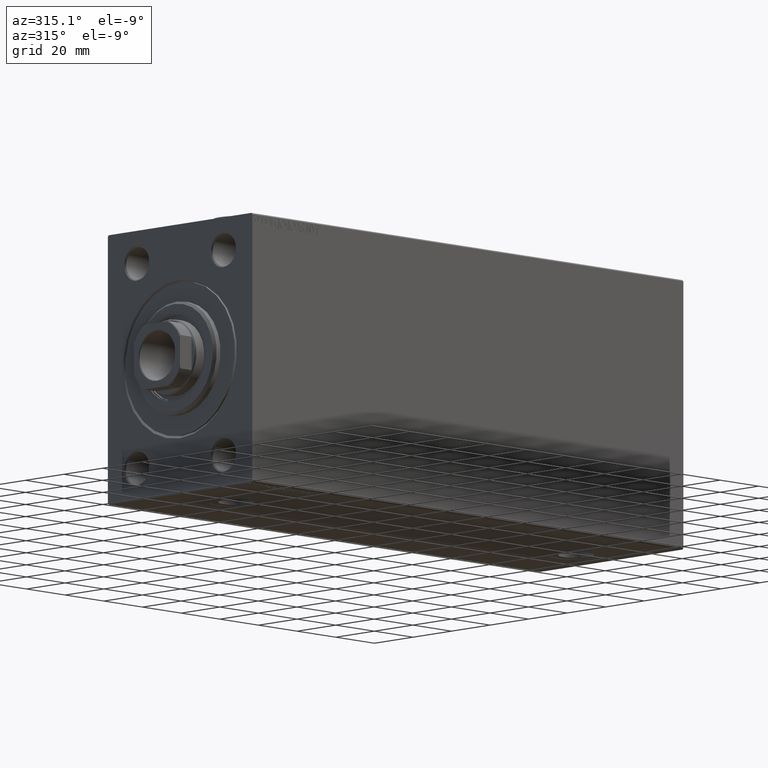
[diagram: clean part render]
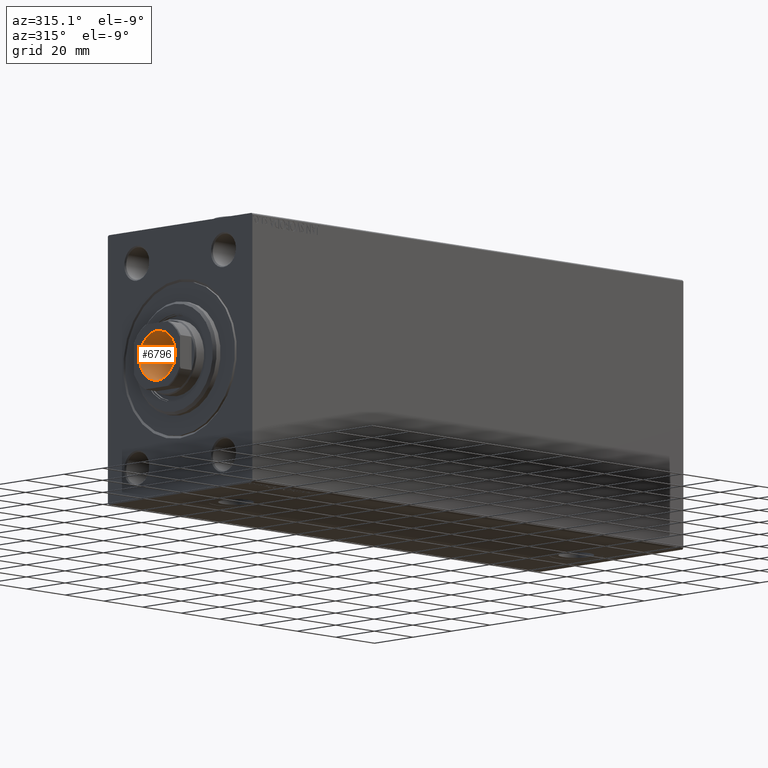
[diagram: same view with one face highlighted and labeled with its STEP entity id]
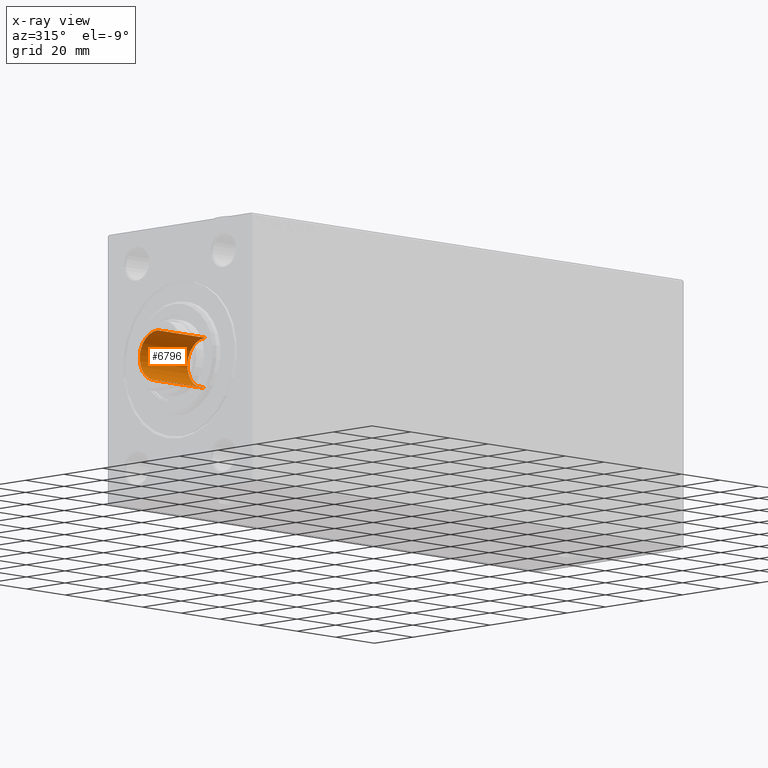
[diagram: x-ray of the same camera — body ghosted, the highlighted face saturated]
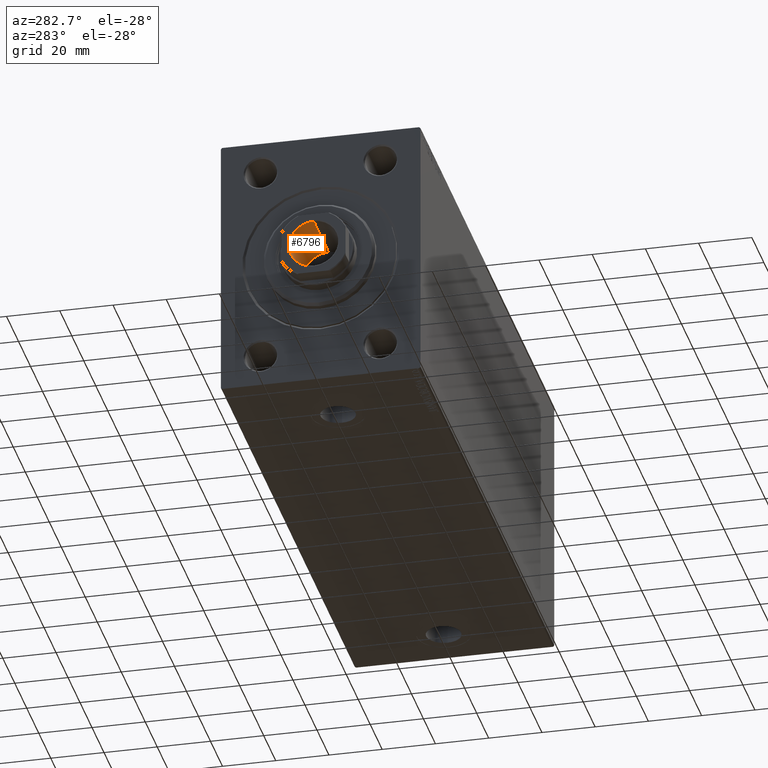
[diagram: same view with one face highlighted and labeled with its STEP entity id]
A machine part, auxiliary view. The second image highlights one B-rep face of the part: STEP entity #6796.
The next image is the same camera in x-ray: the body ghosted, the highlighted face saturated — about 0% of this face is hidden behind the body in this view.
A second angle (auxiliary view) of the same face is appended — the face is thin or edge-on in the first view.
In plain terms, the highlighted cylindrical surface (edge-blend (fillet) strip) has radius 9.25 mm, axis along (-1, 0, 0).
Its self-contained STEP definition (entity closure, byte-faithful):
#735 = LINE ( 'NONE', #21525, #42680 ) ;
#1972 = ORIENTED_EDGE ( 'NONE', *, *, #22851, .T. ) ;
#2184 = DIRECTION ( 'NONE',  ( -0.000000000000000000, -0.000000000000000000, 1.000000000000000000 ) ) ;
#2613 = CYLINDRICAL_SURFACE ( 'NONE', #28623, 9.249999999999994671 ) ;
#4317 = DIRECTION ( 'NONE',  ( 0.000000000000000000, 0.000000000000000000, 1.000000000000000000 ) ) ;
#6796 = ADVANCED_FACE ( 'NONE', ( #27330 ), #2613, .F. ) ;
#6971 = DIRECTION ( 'NONE',  ( -0.000000000000000000, -0.000000000000000000, 1.000000000000000000 ) ) ;
#9764 = DIRECTION ( 'NONE',  ( 1.000000000000000000, 0.000000000000000000, 0.000000000000000000 ) ) ;
#11588 = EDGE_CURVE ( 'NONE', #32167, #36455, #735, .T. ) ;
#15598 = AXIS2_PLACEMENT_3D ( 'NONE', #21648, #4317, #28803 ) ;
#15631 = EDGE_LOOP ( 'NONE', ( #38471, #25280, #18137, #1972 ) ) ;
#16500 = CARTESIAN_POINT ( 'NONE',  ( -9.249999999999994671, 1.132798289211300909E-15, 221.0000000000000284 ) ) ;
#18137 = ORIENTED_EDGE ( 'NONE', *, *, #11588, .T. ) ;
#18138 = VECTOR ( 'NONE', #2184, 1000.000000000000000 ) ;
#18763 = AXIS2_PLACEMENT_3D ( 'NONE', #31139, #27672, #41767 ) ;
#18769 = VERTEX_POINT ( 'NONE', #38525 ) ;
#21525 = CARTESIAN_POINT ( 'NONE',  ( 9.249999999999994671, 0.000000000000000000, 221.0000000000000284 ) ) ;
#21648 = CARTESIAN_POINT ( 'NONE',  ( 0.000000000000000000, 0.000000000000000000, 220.7000000000001023 ) ) ;
#22851 = EDGE_CURVE ( 'NONE', #36455, #18769, #44390, .T. ) ;
#22999 = VERTEX_POINT ( 'NONE', #37973 ) ;
#25280 = ORIENTED_EDGE ( 'NONE', *, *, #30808, .F. ) ;
#26903 = LINE ( 'NONE', #16500, #18138 ) ;
#27330 = FACE_OUTER_BOUND ( 'NONE', #15631, .T. ) ;
#27672 = DIRECTION ( 'NONE',  ( -0.000000000000000000, -0.000000000000000000, 1.000000000000000000 ) ) ;
#28623 = AXIS2_PLACEMENT_3D ( 'NONE', #31019, #44663, #9764 ) ;
#28803 = DIRECTION ( 'NONE',  ( 1.000000000000000000, 0.000000000000000000, 0.000000000000000000 ) ) ;
#30808 = EDGE_CURVE ( 'NONE', #32167, #22999, #39426, .T. ) ;
#31019 = CARTESIAN_POINT ( 'NONE',  ( 0.000000000000000000, 0.000000000000000000, 221.0000000000000284 ) ) ;
#31139 = CARTESIAN_POINT ( 'NONE',  ( 0.000000000000000000, 0.000000000000000000, 196.0000000000000284 ) ) ;
#32167 = VERTEX_POINT ( 'NONE', #44857 ) ;
#36455 = VERTEX_POINT ( 'NONE', #43959 ) ;
#37750 = EDGE_CURVE ( 'NONE', #22999, #18769, #26903, .T. ) ;
#37973 = CARTESIAN_POINT ( 'NONE',  ( -9.249999999999994671, 1.132798289211300909E-15, 196.0000000000000284 ) ) ;
#38471 = ORIENTED_EDGE ( 'NONE', *, *, #37750, .F. ) ;
#38525 = CARTESIAN_POINT ( 'NONE',  ( -9.249999999999994671, 1.132798289211300909E-15, 220.7000000000001023 ) ) ;
#39426 = CIRCLE ( 'NONE', #18763, 9.249999999999994671 ) ;
#41767 = DIRECTION ( 'NONE',  ( 1.000000000000000000, 0.000000000000000000, 0.000000000000000000 ) ) ;
#42680 = VECTOR ( 'NONE', #6971, 1000.000000000000000 ) ;
#43959 = CARTESIAN_POINT ( 'NONE',  ( 9.249999999999994671, 0.000000000000000000, 220.7000000000001023 ) ) ;
#44390 = CIRCLE ( 'NONE', #15598, 9.249999999999994671 ) ;
#44663 = DIRECTION ( 'NONE',  ( -0.000000000000000000, -0.000000000000000000, 1.000000000000000000 ) ) ;
#44857 = CARTESIAN_POINT ( 'NONE',  ( 9.249999999999994671, 0.000000000000000000, 196.0000000000000284 ) ) ;